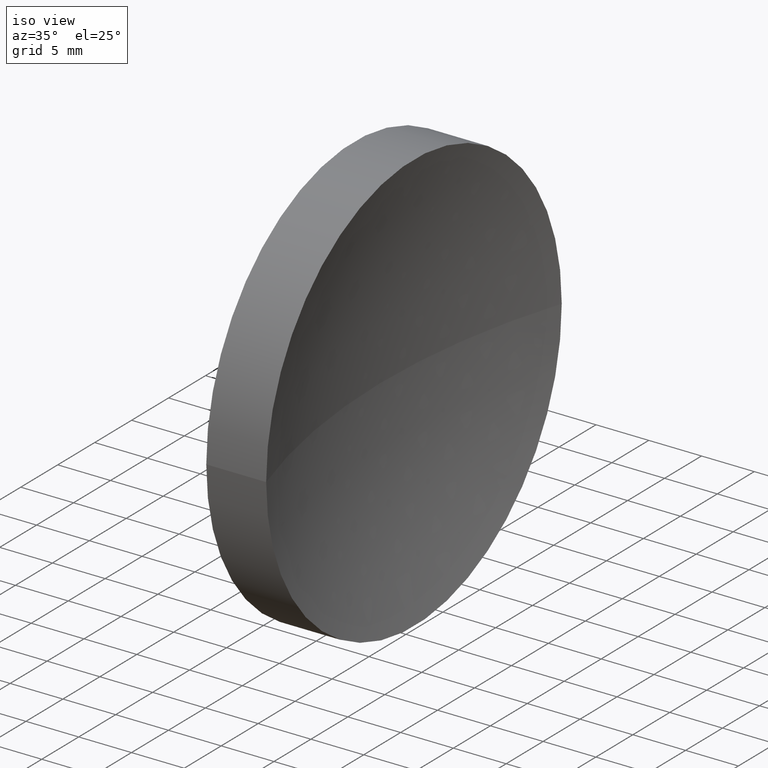
[diagram: clean part render]
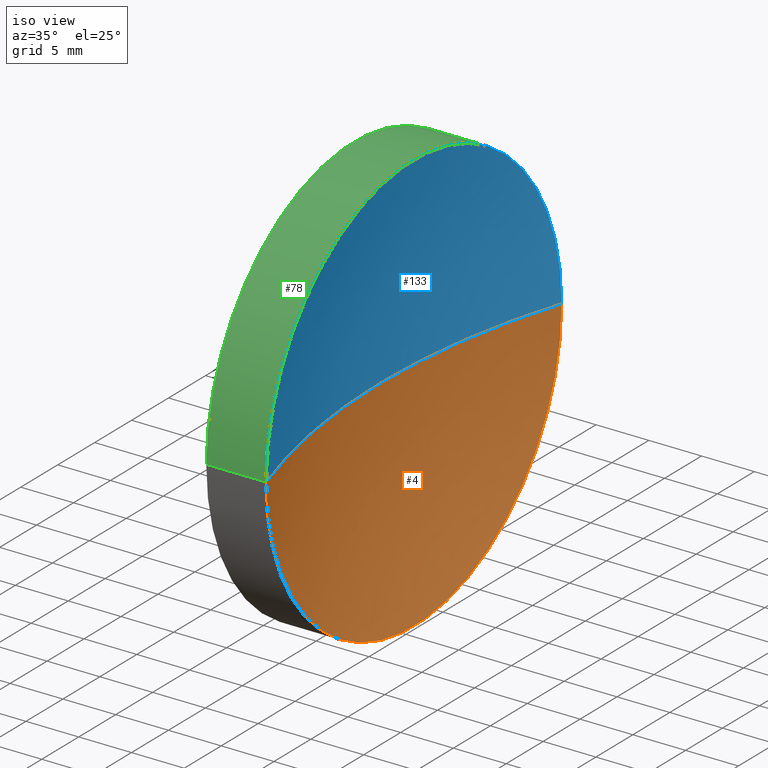
[diagram: same view with three faces highlighted in distinct colors, each labeled with its STEP entity id]
A machine part, iso view with three faces highlighted in distinct colors.
Their STEP definitions:

[orange] entity #4 — the highlighted spherical surface has radius 64.55 mm.
#4 = ADVANCED_FACE ( 'NONE', ( #106 ), #24, .F. ) ;
#8 = CARTESIAN_POINT ( 'NONE',  ( 117.4754472601861900, 65.15745356914868600, 0.0000000000000000000 ) ) ;
#10 = EDGE_CURVE ( 'NONE', #27, #121, #66, .T. ) ;
#16 = CARTESIAN_POINT ( 'NONE',  ( 120.6519792980244600, 85.15745182658623900, 2.449293384892353000E-015 ) ) ;
#19 = CARTESIAN_POINT ( 'NONE',  ( 120.6519792980244300, 45.15745356914864300, 0.0000000000000000000 ) ) ;
#24 = SPHERICAL_SURFACE ( 'NONE', #31, 64.54999999999999700 ) ;
#25 = AXIS2_PLACEMENT_3D ( 'NONE', #112, #30, #125 ) ;
#27 = VERTEX_POINT ( 'NONE', #16 ) ;
#30 = DIRECTION ( 'NONE',  ( -7.946652182046252500E-032, -1.224646799147353200E-016, 1.000000000000000000 ) ) ;
#31 = AXIS2_PLACEMENT_3D ( 'NONE', #141, #98, #73 ) ;
#34 = AXIS2_PLACEMENT_3D ( 'NONE', #142, #161, #61 ) ;
#41 = EDGE_LOOP ( 'NONE', ( #57, #120, #96 ) ) ;
#44 = EDGE_CURVE ( 'NONE', #27, #94, #158, .T. ) ;
#57 = ORIENTED_EDGE ( 'NONE', *, *, #44, .F. ) ;
#61 = DIRECTION ( 'NONE',  ( -6.938893903907219500E-016, -1.000000000000000000, 0.0000000000000000000 ) ) ;
#65 = AXIS2_PLACEMENT_3D ( 'NONE', #134, #105, #143 ) ;
#66 = CIRCLE ( 'NONE', #25, 64.54999999999999700 ) ;
#67 = CIRCLE ( 'NONE', #65, 64.54999999999999700 ) ;
#73 = DIRECTION ( 'NONE',  ( -8.599713591209579000E-016, -1.000000000000000000, 0.0000000000000000000 ) ) ;
#94 = VERTEX_POINT ( 'NONE', #19 ) ;
#96 = ORIENTED_EDGE ( 'NONE', *, *, #122, .F. ) ;
#98 = DIRECTION ( 'NONE',  ( 0.0000000000000000000, 0.0000000000000000000, 1.000000000000000000 ) ) ;
#105 = DIRECTION ( 'NONE',  ( 0.0000000000000000000, -0.0000000000000000000, -1.000000000000000000 ) ) ;
#106 = FACE_OUTER_BOUND ( 'NONE', #41, .T. ) ;
#112 = CARTESIAN_POINT ( 'NONE',  ( 182.0254472601861800, 65.15745356914864300, 0.0000000000000000000 ) ) ;
#120 = ORIENTED_EDGE ( 'NONE', *, *, #10, .T. ) ;
#121 = VERTEX_POINT ( 'NONE', #8 ) ;
#122 = EDGE_CURVE ( 'NONE', #94, #121, #67, .T. ) ;
#125 = DIRECTION ( 'NONE',  ( 0.0000000000000000000, -1.000000000000000000, -1.224646799147353000E-016 ) ) ;
#134 = CARTESIAN_POINT ( 'NONE',  ( 182.0254472601861800, 65.15745356914864300, 0.0000000000000000000 ) ) ;
#141 = CARTESIAN_POINT ( 'NONE',  ( 182.0254472601861800, 65.15745356914864300, 0.0000000000000000000 ) ) ;
#142 = CARTESIAN_POINT ( 'NONE',  ( 120.6519792980244300, 65.15745182658619700, 0.0000000000000000000 ) ) ;
#143 = DIRECTION ( 'NONE',  ( -1.000000000000000000, 0.0000000000000000000, 0.0000000000000000000 ) ) ;
#158 = CIRCLE ( 'NONE', #34, 20.00000000000002500 ) ;
#161 = DIRECTION ( 'NONE',  ( -1.000000000000000000, 6.488933942079480100E-016, -0.0000000000000000000 ) ) ;

[blue] entity #133 — the highlighted spherical surface has radius 64.55 mm.
#8 = CARTESIAN_POINT ( 'NONE',  ( 117.4754472601861900, 65.15745356914868600, 0.0000000000000000000 ) ) ;
#10 = EDGE_CURVE ( 'NONE', #27, #121, #66, .T. ) ;
#16 = CARTESIAN_POINT ( 'NONE',  ( 120.6519792980244600, 85.15745182658623900, 2.449293384892353000E-015 ) ) ;
#18 = EDGE_LOOP ( 'NONE', ( #109, #100, #155 ) ) ;
#19 = CARTESIAN_POINT ( 'NONE',  ( 120.6519792980244300, 45.15745356914864300, 0.0000000000000000000 ) ) ;
#25 = AXIS2_PLACEMENT_3D ( 'NONE', #112, #30, #125 ) ;
#26 = FACE_OUTER_BOUND ( 'NONE', #18, .T. ) ;
#27 = VERTEX_POINT ( 'NONE', #16 ) ;
#30 = DIRECTION ( 'NONE',  ( -7.946652182046252500E-032, -1.224646799147353200E-016, 1.000000000000000000 ) ) ;
#35 = DIRECTION ( 'NONE',  ( -6.938893903907219500E-016, -1.000000000000000000, 0.0000000000000000000 ) ) ;
#42 = AXIS2_PLACEMENT_3D ( 'NONE', #79, #107, #130 ) ;
#56 = CIRCLE ( 'NONE', #166, 20.00000000000002500 ) ;
#65 = AXIS2_PLACEMENT_3D ( 'NONE', #134, #105, #143 ) ;
#66 = CIRCLE ( 'NONE', #25, 64.54999999999999700 ) ;
#67 = CIRCLE ( 'NONE', #65, 64.54999999999999700 ) ;
#79 = CARTESIAN_POINT ( 'NONE',  ( 182.0254472601861800, 65.15745356914864300, 0.0000000000000000000 ) ) ;
#94 = VERTEX_POINT ( 'NONE', #19 ) ;
#100 = ORIENTED_EDGE ( 'NONE', *, *, #128, .F. ) ;
#105 = DIRECTION ( 'NONE',  ( 0.0000000000000000000, -0.0000000000000000000, -1.000000000000000000 ) ) ;
#107 = DIRECTION ( 'NONE',  ( 0.0000000000000000000, 0.0000000000000000000, 1.000000000000000000 ) ) ;
#109 = ORIENTED_EDGE ( 'NONE', *, *, #10, .F. ) ;
#112 = CARTESIAN_POINT ( 'NONE',  ( 182.0254472601861800, 65.15745356914864300, 0.0000000000000000000 ) ) ;
#114 = DIRECTION ( 'NONE',  ( -1.000000000000000000, 6.488933942079480100E-016, -0.0000000000000000000 ) ) ;
#119 = CARTESIAN_POINT ( 'NONE',  ( 120.6519792980244300, 65.15745182658619700, 0.0000000000000000000 ) ) ;
#121 = VERTEX_POINT ( 'NONE', #8 ) ;
#122 = EDGE_CURVE ( 'NONE', #94, #121, #67, .T. ) ;
#123 = SPHERICAL_SURFACE ( 'NONE', #42, 64.54999999999999700 ) ;
#125 = DIRECTION ( 'NONE',  ( 0.0000000000000000000, -1.000000000000000000, -1.224646799147353000E-016 ) ) ;
#128 = EDGE_CURVE ( 'NONE', #94, #27, #56, .T. ) ;
#130 = DIRECTION ( 'NONE',  ( -8.599713591209579000E-016, -1.000000000000000000, 0.0000000000000000000 ) ) ;
#133 = ADVANCED_FACE ( 'NONE', ( #26 ), #123, .F. ) ;
#134 = CARTESIAN_POINT ( 'NONE',  ( 182.0254472601861800, 65.15745356914864300, 0.0000000000000000000 ) ) ;
#143 = DIRECTION ( 'NONE',  ( -1.000000000000000000, 0.0000000000000000000, 0.0000000000000000000 ) ) ;
#155 = ORIENTED_EDGE ( 'NONE', *, *, #122, .T. ) ;
#166 = AXIS2_PLACEMENT_3D ( 'NONE', #119, #114, #35 ) ;

[green] entity #78 — the highlighted cylindrical surface (partial cylindrical patch) has radius 20 mm, axis along (-1, 0, -0).
#5 = ORIENTED_EDGE ( 'NONE', *, *, #23, .F. ) ;
#6 = CARTESIAN_POINT ( 'NONE',  ( 110.0147892488423600, 65.15745182658619700, 0.0000000000000000000 ) ) ;
#12 = EDGE_LOOP ( 'NONE', ( #131, #22, #50, #5 ) ) ;
#14 = EDGE_CURVE ( 'NONE', #27, #81, #148, .T. ) ;
#16 = CARTESIAN_POINT ( 'NONE',  ( 120.6519792980244600, 85.15745182658623900, 2.449293384892353000E-015 ) ) ;
#19 = CARTESIAN_POINT ( 'NONE',  ( 120.6519792980244300, 45.15745356914864300, 0.0000000000000000000 ) ) ;
#20 = DIRECTION ( 'NONE',  ( -1.000000000000000000, 6.488933942079480100E-016, -0.0000000000000000000 ) ) ;
#22 = ORIENTED_EDGE ( 'NONE', *, *, #14, .T. ) ;
#23 = EDGE_CURVE ( 'NONE', #94, #144, #39, .T. ) ;
#27 = VERTEX_POINT ( 'NONE', #16 ) ;
#35 = DIRECTION ( 'NONE',  ( -6.938893903907219500E-016, -1.000000000000000000, 0.0000000000000000000 ) ) ;
#39 = LINE ( 'NONE', #86, #140 ) ;
#43 = DIRECTION ( 'NONE',  ( -1.000000000000000000, 6.488933942079480100E-016, -0.0000000000000000000 ) ) ;
#45 = FACE_OUTER_BOUND ( 'NONE', #12, .T. ) ;
#47 = CARTESIAN_POINT ( 'NONE',  ( 114.9754472601862300, 85.15745182658619700, 2.449293598294706500E-015 ) ) ;
#50 = ORIENTED_EDGE ( 'NONE', *, *, #68, .F. ) ;
#51 = CARTESIAN_POINT ( 'NONE',  ( 114.9754472601862000, 45.15745182658619000, 0.0000000000000000000 ) ) ;
#54 = AXIS2_PLACEMENT_3D ( 'NONE', #6, #116, #103 ) ;
#56 = CIRCLE ( 'NONE', #166, 20.00000000000002500 ) ;
#68 = EDGE_CURVE ( 'NONE', #144, #81, #92, .T. ) ;
#69 = VECTOR ( 'NONE', #97, 1000.000000000000000 ) ;
#78 = ADVANCED_FACE ( 'NONE', ( #45 ), #162, .T. ) ;
#81 = VERTEX_POINT ( 'NONE', #47 ) ;
#86 = CARTESIAN_POINT ( 'NONE',  ( 110.0147892488423500, 45.15745182658618300, 0.0000000000000000000 ) ) ;
#92 = CIRCLE ( 'NONE', #113, 20.00000000000000400 ) ;
#94 = VERTEX_POINT ( 'NONE', #19 ) ;
#97 = DIRECTION ( 'NONE',  ( -1.000000000000000000, 6.488933942079480100E-016, -0.0000000000000000000 ) ) ;
#103 = DIRECTION ( 'NONE',  ( -6.938893903907224400E-016, -1.000000000000000000, 0.0000000000000000000 ) ) ;
#113 = AXIS2_PLACEMENT_3D ( 'NONE', #146, #20, #153 ) ;
#114 = DIRECTION ( 'NONE',  ( -1.000000000000000000, 6.488933942079480100E-016, -0.0000000000000000000 ) ) ;
#116 = DIRECTION ( 'NONE',  ( -1.000000000000000000, 6.488933942079480100E-016, -0.0000000000000000000 ) ) ;
#119 = CARTESIAN_POINT ( 'NONE',  ( 120.6519792980244300, 65.15745182658619700, 0.0000000000000000000 ) ) ;
#126 = CARTESIAN_POINT ( 'NONE',  ( 110.0147892488423800, 85.15745182658621100, 2.449293598294708100E-015 ) ) ;
#128 = EDGE_CURVE ( 'NONE', #94, #27, #56, .T. ) ;
#131 = ORIENTED_EDGE ( 'NONE', *, *, #128, .T. ) ;
#140 = VECTOR ( 'NONE', #43, 1000.000000000000000 ) ;
#144 = VERTEX_POINT ( 'NONE', #51 ) ;
#146 = CARTESIAN_POINT ( 'NONE',  ( 114.9754472601862100, 65.15745182658619700, 0.0000000000000000000 ) ) ;
#148 = LINE ( 'NONE', #126, #69 ) ;
#153 = DIRECTION ( 'NONE',  ( -6.938893903907227400E-016, -1.000000000000000000, 0.0000000000000000000 ) ) ;
#162 = CYLINDRICAL_SURFACE ( 'NONE', #54, 20.00000000000001100 ) ;
#166 = AXIS2_PLACEMENT_3D ( 'NONE', #119, #114, #35 ) ;